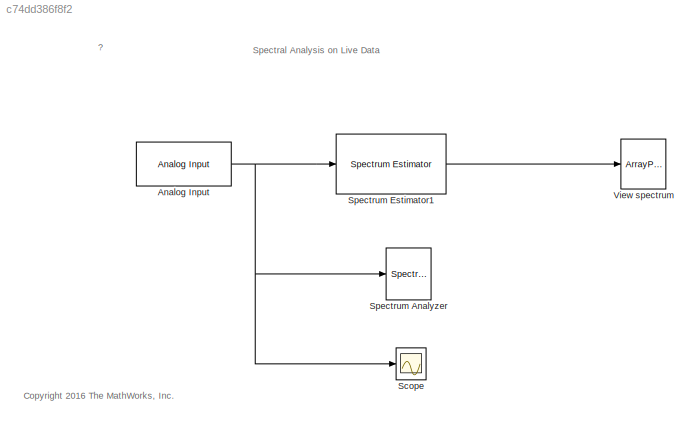
MODEL slx_c74dd386f8f2
KIND model
CONFIG AbsTol = auto
CONFIG EnableMultiTasking = on
CONFIG FixedStep = auto
CONFIG MaxStep = auto
CONFIG MinStep = auto
CONFIG RelTol = 1e-3
CONFIG SampleTimeConstraint = Unconstrained
CONFIG SolverName = FixedStepDiscrete
CONFIG StartTime = 0.0
CONFIG StopTime = inf
WORKSPACE source: external: MAT-File  (data not in archive)
BLOCK [Reference] Analog Input  REF=daqlib/Analog Input
  SourceBlock = daqlib/Analog Input
  SourceType = Analog Input
BLOCK [Scope] Scope
  Floating = off
  NumInputPorts = 1
  ScopeSpecificationString = Simulink.scopes.TimeScopeBlockCfg('CurrentConfiguration', extmgr.ConfigurationSet(extmgr.Configuration('Core','General UI',true),extmgr.Configuration('Core','Source UI',true),extmgr.Configuration('Sources','WiredSimulink',true),extmgr.Configuration('Visuals','Time Domain',true,'InputProcessing','FrameProcessing','SerializedDisplays',{struct('MinYLimReal','-1.00817','MaxYLimReal','1.01051','YLabelR...<+1480ch>
BLOCK [SpectrumAnalyzer] Spectrum Analyzer
  AveragingMethod = Running
  GraphicalSettings = {"GraphicalSettings":{"Style":{"BackgroundColor":[0.1568627450980392,0.1568627450980392,0.1568627450980392],"AxesColor":[0,0,0],"LabelsColor":[0.6862745098039216,0.6862745098039216,0.6862745098039216],"PreserveColors":false,"Visible":[true],"LineStyle":["-"],"LineColor":[[1,1,0.06666666666666667]],"LineWidth":[0.5],"Marker":["none"],"FontSize":"small"},"Cursors":{"Enabled":false,"XLocation":[2,8],...<+831ch>
  Method = Welch
  ScopeFrameLocation = window
  ScopeSpecificationString = spbscopes.SpectrumAnalyzerBlockCfg('CurrentConfiguration', extmgr.ConfigurationSet(extmgr.Configuration('Core','General UI',true),extmgr.Configuration('Core','Source UI',true),extmgr.Configuration('Sources','WiredSimulink',true),extmgr.Configuration('Sources','File',false),extmgr.Configuration('Sources','SPTool',false),extmgr.Configuration('Sources','Workspace',false),extmgr.Configuration('Sources...<+2184ch>
  ShowLegend = on
  Span = 250000
  StartFrequency = -125000
  StopFrequency = 125000
  WasSavedAsWebScope = on
  WindowPosition = [1.000000,41.000000,1536.000000,801.000000,]
  YLimits = [-123.74351322,37.66547463]
BLOCK [Reference] Spectrum Estimator1  REF=dspspect3/Spectrum Estimator
  SourceBlock = dspspect3/Spectrum Estimator
  SourceType = Spectrum Estimator
BLOCK [ArrayPlot] View spectrum
  AxesScaling = Manual
  GraphicalSettings = {"Style":{"BackgroundColor":[0.1568627450980392,0.1568627450980392,0.1568627450980392],"AxesColor":[0,0,0],"LabelsColor":[0.6862745098039216,0.6862745098039216,0.6862745098039216],"PreserveColors":false,"Visible":[true],"LineStyle":["-"],"LineColor":[[1,1,0.06666666666666667]],"LineWidth":[1.5],"Marker":["none"],"FontSize":"small"},"Cursors":{"Enabled":true,"XLocation":[3.603515625,3.701171875],"Y...<+490ch>
  PlotType = Line
  SampleIncrement = (10000)/(1024) / 1000
  ScopeFrameLocation = window
  WasSavedAsWebScope = on
  WindowPosition = [1.000000,41.000000,1536.000000,801.000000,]
  XLabel = Frequency (KHz)
  YLabel = dBm
  YLimits = [-57.7228,17.1959]
ANNOTATION (root): ?
ANNOTATION (root): <copyright redacted>
ANNOTATION (root): Spectral Analysis on Live Data
NET Analog Input:1 -> Scope:1, Spectrum Analyzer:1, Spectrum Estimator1:1
LINE Spectrum Estimator1:1 -> View spectrum:1
note: NET lines group one-source signal fan-out (src -> all destinations, sorted); 1:1 wires keep LINE
